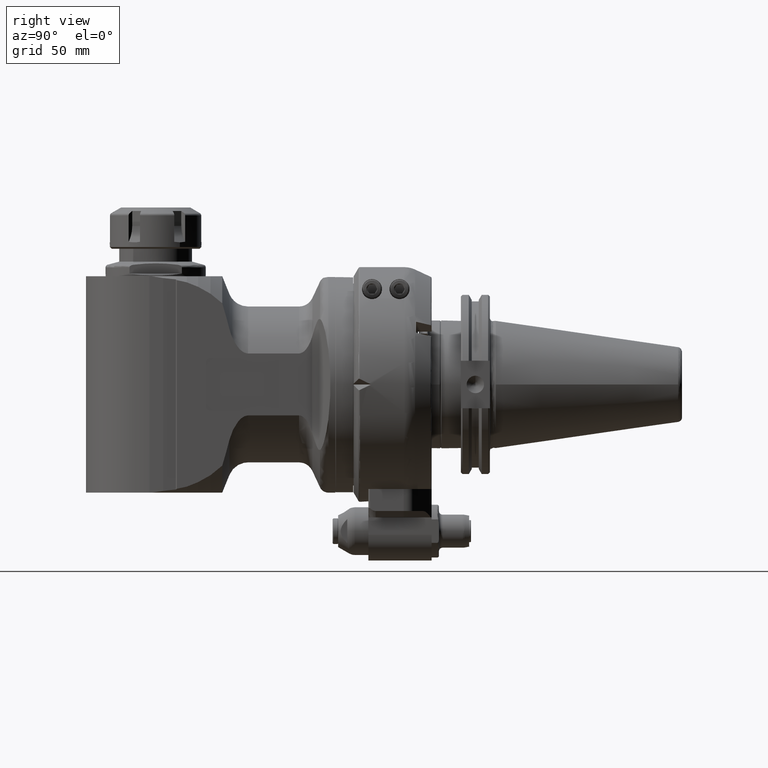
[diagram: clean part render]
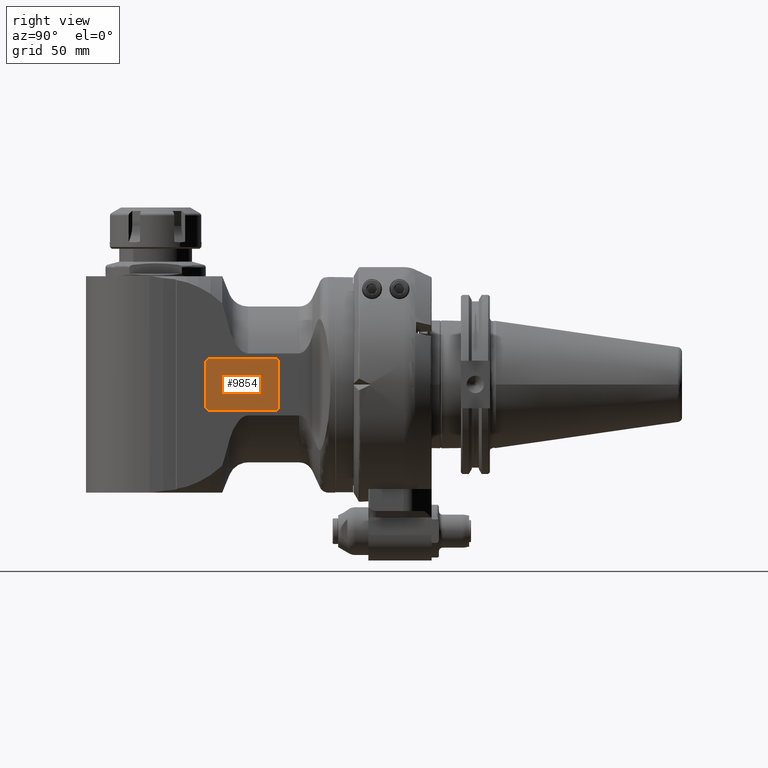
[diagram: same view with one face highlighted and labeled with its STEP entity id]
A machine part, right view. The second image highlights one B-rep face of the part: STEP entity #9854.
In plain terms, the highlighted planar face has unit normal (1, 0, -0).
Its self-contained STEP definition (entity closure, byte-faithful):
#517=PLANE('',#10718);
#1027=FACE_OUTER_BOUND('',#1638,.T.);
#1638=EDGE_LOOP('',(#7207,#7208,#7209,#7210,#7211,#7212,#7213,#7214));
#2269=LINE('',#16011,#2903);
#2270=LINE('',#16015,#2904);
#2271=LINE('',#16019,#2905);
#2272=LINE('',#16022,#2906);
#2903=VECTOR('',#12337,35.5);
#2904=VECTOR('',#12340,24.5);
#2905=VECTOR('',#12343,35.5);
#2906=VECTOR('',#12346,24.5);
#3541=CIRCLE('',#10717,2.);
#3542=CIRCLE('',#10719,2.);
#3543=CIRCLE('',#10720,2.);
#3544=CIRCLE('',#10721,2.);
#4226=VERTEX_POINT('',#16004);
#4227=VERTEX_POINT('',#16005);
#4228=VERTEX_POINT('',#16010);
#4229=VERTEX_POINT('',#16012);
#4230=VERTEX_POINT('',#16014);
#4231=VERTEX_POINT('',#16016);
#4232=VERTEX_POINT('',#16018);
#4233=VERTEX_POINT('',#16020);
#5329=EDGE_CURVE('',#4226,#4227,#3541,.T.);
#5332=EDGE_CURVE('',#4226,#4228,#2269,.T.);
#5333=EDGE_CURVE('',#4229,#4228,#3542,.T.);
#5334=EDGE_CURVE('',#4229,#4230,#2270,.T.);
#5335=EDGE_CURVE('',#4231,#4230,#3543,.T.);
#5336=EDGE_CURVE('',#4231,#4232,#2271,.T.);
#5337=EDGE_CURVE('',#4233,#4232,#3544,.T.);
#5338=EDGE_CURVE('',#4233,#4227,#2272,.T.);
#7207=ORIENTED_EDGE('',*,*,#5332,.T.);
#7208=ORIENTED_EDGE('',*,*,#5333,.F.);
#7209=ORIENTED_EDGE('',*,*,#5334,.T.);
#7210=ORIENTED_EDGE('',*,*,#5335,.F.);
#7211=ORIENTED_EDGE('',*,*,#5336,.T.);
#7212=ORIENTED_EDGE('',*,*,#5337,.F.);
#7213=ORIENTED_EDGE('',*,*,#5338,.T.);
#7214=ORIENTED_EDGE('',*,*,#5329,.F.);
#9854=ADVANCED_FACE('',(#1027),#517,.T.);
#10717=AXIS2_PLACEMENT_3D('',#16006,#12331,#12332);
#10718=AXIS2_PLACEMENT_3D('',#16009,#12335,#12336);
#10719=AXIS2_PLACEMENT_3D('',#16013,#12338,#12339);
#10720=AXIS2_PLACEMENT_3D('',#16017,#12341,#12342);
#10721=AXIS2_PLACEMENT_3D('',#16021,#12344,#12345);
#12331=DIRECTION('center_axis',(0.,0.,-1.));
#12332=DIRECTION('ref_axis',(0.,-1.,0.));
#12335=DIRECTION('center_axis',(0.,0.,1.));
#12336=DIRECTION('ref_axis',(1.,0.,0.));
#12337=DIRECTION('',(1.,0.,0.));
#12338=DIRECTION('center_axis',(0.,0.,-1.));
#12339=DIRECTION('ref_axis',(1.,0.,0.));
#12340=DIRECTION('',(0.,1.,0.));
#12341=DIRECTION('center_axis',(0.,0.,-1.));
#12342=DIRECTION('ref_axis',(0.,1.,0.));
#12343=DIRECTION('',(-1.,0.,0.));
#12344=DIRECTION('center_axis',(0.,0.,-1.));
#12345=DIRECTION('ref_axis',(-1.,0.,0.));
#12346=DIRECTION('',(0.,-1.,0.));
#16004=CARTESIAN_POINT('',(45.,-14.25,38.6));
#16005=CARTESIAN_POINT('',(43.,-12.25,38.6));
#16006=CARTESIAN_POINT('Origin',(45.,-12.25,38.6));
#16009=CARTESIAN_POINT('Origin',(0.,0.,38.6));
#16010=CARTESIAN_POINT('',(80.5,-14.25,38.6));
#16011=CARTESIAN_POINT('',(45.,-14.25,38.6));
#16012=CARTESIAN_POINT('',(82.5,-12.25,38.6));
#16013=CARTESIAN_POINT('Origin',(80.5,-12.25,38.6));
#16014=CARTESIAN_POINT('',(82.5,12.25,38.6));
#16015=CARTESIAN_POINT('',(82.5,-12.25,38.6));
#16016=CARTESIAN_POINT('',(80.5,14.25,38.6));
#16017=CARTESIAN_POINT('Origin',(80.5,12.25,38.6));
#16018=CARTESIAN_POINT('',(45.,14.25,38.6));
#16019=CARTESIAN_POINT('',(80.5,14.25,38.6));
#16020=CARTESIAN_POINT('',(43.,12.25,38.6));
#16021=CARTESIAN_POINT('Origin',(45.,12.25,38.6));
#16022=CARTESIAN_POINT('',(43.,12.25,38.6));